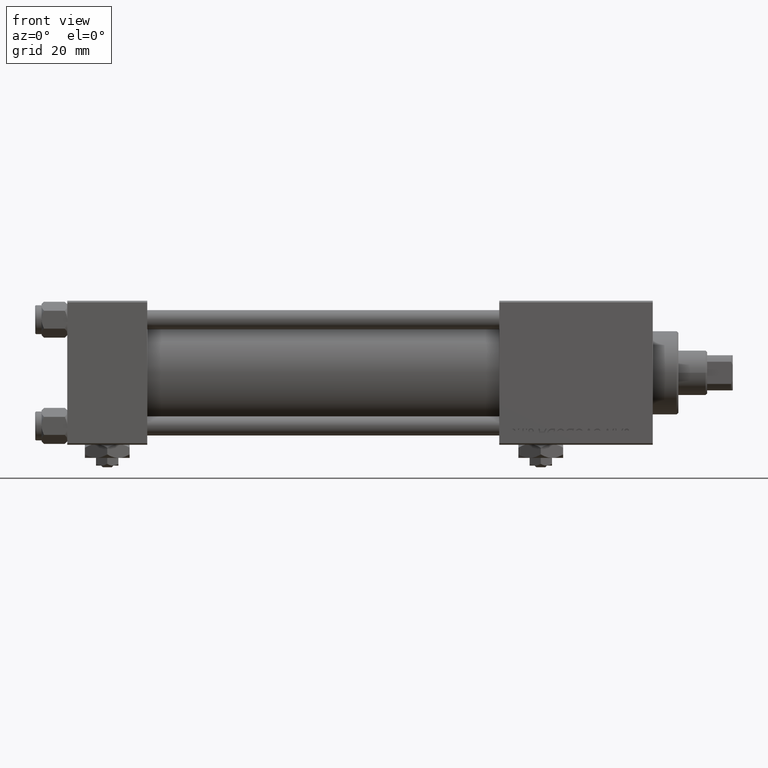
[diagram: clean part render]
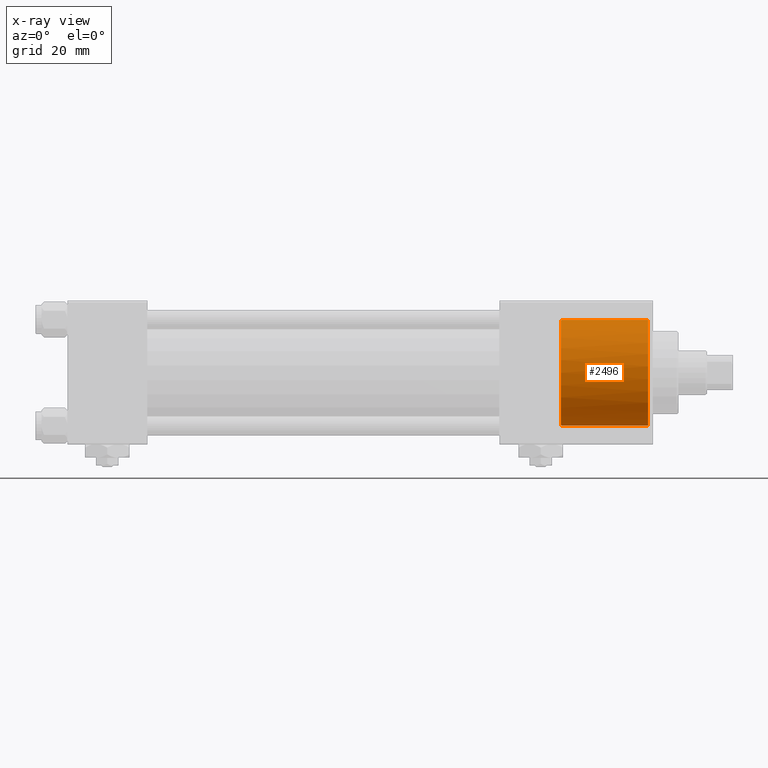
[diagram: x-ray — body ghosted, one internal face saturated and labeled with its STEP entity id]
A machine part, front view, then the same camera in x-ray: the body is ghosted and one INTERNAL B-rep face — a face not visible from any outside direction — is saturated and labeled: STEP entity #2496.
In plain terms, the highlighted cylindrical surface (partial cylindrical patch) has radius 16.5 mm, axis along (1, 0, 0).
Its self-contained STEP definition (entity closure, byte-faithful):
#72 = CARTESIAN_POINT ( 'NONE',  ( 154.5800000000000125, 2.020172432134641245E-15, 16.50000000000000000 ) ) ;
#199 = VERTEX_POINT ( 'NONE', #7208 ) ;
#568 = CIRCLE ( 'NONE', #18247, 16.50000000000000000 ) ;
#935 = CARTESIAN_POINT ( 'NONE',  ( 181.5000000000000000, 2.020667218593133100E-15, 16.50000000000000000 ) ) ;
#1030 = LINE ( 'NONE', #13138, #16371 ) ;
#1523 = EDGE_CURVE ( 'NONE', #2022, #23050, #1030, .T. ) ;
#2022 = VERTEX_POINT ( 'NONE', #72 ) ;
#2323 = CYLINDRICAL_SURFACE ( 'NONE', #30761, 16.50000000000000000 ) ;
#2496 = ADVANCED_FACE ( 'NONE', ( #26355 ), #2323, .F. ) ;
#2632 = B_SPLINE_CURVE_WITH_KNOTS ( 'NONE', 3,
 ( #27813, #7488, #10912, #23585, #4039, #27045 ),
 .UNSPECIFIED., .F., .F.,
 ( 4, 2, 4 ),
 ( 0.001922561461481232933, 0.002880296703329425154, 0.003838031945177617157 ),
 .UNSPECIFIED. ) ;
#2768 = CARTESIAN_POINT ( 'NONE',  ( 154.2999999999999829, -1.899052395275219629, -16.39035081991839249 ) ) ;
#4039 = CARTESIAN_POINT ( 'NONE',  ( 154.3928892406244984, -1.590897540048304304, -16.42605488887726040 ) ) ;
#4104 = DIRECTION ( 'NONE',  ( 1.000000000000000000, -0.000000000000000000, -0.000000000000000000 ) ) ;
#4422 = ORIENTED_EDGE ( 'NONE', *, *, #17588, .F. ) ;
#4443 = VERTEX_POINT ( 'NONE', #14669 ) ;
#4731 = ORIENTED_EDGE ( 'NONE', *, *, #22457, .T. ) ;
#6042 = DIRECTION ( 'NONE',  ( 1.000000000000000000, 0.000000000000000000, 0.000000000000000000 ) ) ;
#6359 = ORIENTED_EDGE ( 'NONE', *, *, #44464, .T. ) ;
#7208 = CARTESIAN_POINT ( 'NONE',  ( 154.2999999999999829, -1.899052395275226734, 16.39035081991839249 ) ) ;
#7488 = CARTESIAN_POINT ( 'NONE',  ( 154.5800000000000409, -0.3226077776616007586, -16.50000000000000000 ) ) ;
#7549 = CARTESIAN_POINT ( 'NONE',  ( 154.2999999999999829, 0.000000000000000000, -16.50000000000000000 ) ) ;
#8005 = CARTESIAN_POINT ( 'NONE',  ( 154.2999999999999829, 0.000000000000000000, 0.000000000000000000 ) ) ;
#10877 = ORIENTED_EDGE ( 'NONE', *, *, #26308, .F. ) ;
#10912 = CARTESIAN_POINT ( 'NONE',  ( 154.5560906815447026, -0.6453575044927177817, -16.49042383039745374 ) ) ;
#11008 = CARTESIAN_POINT ( 'NONE',  ( 154.5800000000000125, -4.947864844516897454E-19, -16.50000000000000000 ) ) ;
#13138 = CARTESIAN_POINT ( 'NONE',  ( 154.2999999999999829, 2.020667218593133100E-15, 16.50000000000000000 ) ) ;
#14669 = CARTESIAN_POINT ( 'NONE',  ( 181.5000000000000000, 0.000000000000000000, -16.50000000000000000 ) ) ;
#15453 = LINE ( 'NONE', #7549, #51915 ) ;
#15547 = VERTEX_POINT ( 'NONE', #2768 ) ;
#16371 = VECTOR ( 'NONE', #21588, 1000.000000000000000 ) ;
#17390 = DIRECTION ( 'NONE',  ( 0.000000000000000000, 0.000000000000000000, 1.000000000000000000 ) ) ;
#17588 = EDGE_CURVE ( 'NONE', #199, #15547, #568, .T. ) ;
#18247 = AXIS2_PLACEMENT_3D ( 'NONE', #8005, #43910, #24356 ) ;
#18667 = DIRECTION ( 'NONE',  ( 1.000000000000000000, -0.000000000000000000, -0.000000000000000000 ) ) ;
#21588 = DIRECTION ( 'NONE',  ( 1.000000000000000000, -0.000000000000000000, -0.000000000000000000 ) ) ;
#22457 = EDGE_CURVE ( 'NONE', #23050, #4443, #33497, .T. ) ;
#22518 = AXIS2_PLACEMENT_3D ( 'NONE', #42229, #6042, #17390 ) ;
#23050 = VERTEX_POINT ( 'NONE', #935 ) ;
#23149 = CARTESIAN_POINT ( 'NONE',  ( 154.5800000000000125, 2.020172432134641245E-15, 16.50000000000000000 ) ) ;
#23585 = CARTESIAN_POINT ( 'NONE',  ( 154.4625232366521459, -1.278516620530611103, -16.45344826064652466 ) ) ;
#24356 = DIRECTION ( 'NONE',  ( 0.000000000000000000, 0.000000000000000000, -1.000000000000000000 ) ) ;
#26226 = EDGE_LOOP ( 'NONE', ( #10877, #30357, #4731, #44671, #6359, #4422 ) ) ;
#26308 = EDGE_CURVE ( 'NONE', #2022, #199, #49970, .T. ) ;
#26355 = FACE_OUTER_BOUND ( 'NONE', #26226, .T. ) ;
#27045 = CARTESIAN_POINT ( 'NONE',  ( 154.2999999999999829, -1.899052395275219629, -16.39035081991839249 ) ) ;
#27380 = CARTESIAN_POINT ( 'NONE',  ( 154.2999999999999829, -1.899052395275226734, 16.39035081991839249 ) ) ;
#27813 = CARTESIAN_POINT ( 'NONE',  ( 154.5800000000000125, -4.947864844516897454E-19, -16.50000000000000000 ) ) ;
#30357 = ORIENTED_EDGE ( 'NONE', *, *, #1523, .T. ) ;
#30761 = AXIS2_PLACEMENT_3D ( 'NONE', #30838, #18667, #46933 ) ;
#30838 = CARTESIAN_POINT ( 'NONE',  ( 154.2999999999999829, 0.000000000000000000, 0.000000000000000000 ) ) ;
#31343 = CARTESIAN_POINT ( 'NONE',  ( 154.4625232366521175, -1.278516620530615322, 16.45344826064651755 ) ) ;
#33497 = CIRCLE ( 'NONE', #22518, 16.50000000000000000 ) ;
#35443 = VERTEX_POINT ( 'NONE', #11008 ) ;
#39521 = CARTESIAN_POINT ( 'NONE',  ( 154.5800000000000693, -0.3226077776616007031, 16.50000000000000000 ) ) ;
#42229 = CARTESIAN_POINT ( 'NONE',  ( 181.5000000000000000, 0.000000000000000000, 0.000000000000000000 ) ) ;
#43910 = DIRECTION ( 'NONE',  ( 1.000000000000000000, 0.000000000000000000, 0.000000000000000000 ) ) ;
#44153 = EDGE_CURVE ( 'NONE', #35443, #4443, #15453, .T. ) ;
#44464 = EDGE_CURVE ( 'NONE', #35443, #15547, #2632, .T. ) ;
#44671 = ORIENTED_EDGE ( 'NONE', *, *, #44153, .F. ) ;
#46933 = DIRECTION ( 'NONE',  ( 0.000000000000000000, 0.000000000000000000, -1.000000000000000000 ) ) ;
#47439 = CARTESIAN_POINT ( 'NONE',  ( 154.3928892406244984, -1.590897540048310077, 16.42605488887726040 ) ) ;
#49970 = B_SPLINE_CURVE_WITH_KNOTS ( 'NONE', 3,
 ( #23149, #39521, #51391, #31343, #47439, #27380 ),
 .UNSPECIFIED., .F., .F.,
 ( 4, 2, 4 ),
 ( 0.001922561461481224476, 0.002880296703329420817, 0.003838031945177617157 ),
 .UNSPECIFIED. ) ;
#51391 = CARTESIAN_POINT ( 'NONE',  ( 154.5560906815446742, -0.6453575044927195581, 16.49042383039745374 ) ) ;
#51915 = VECTOR ( 'NONE', #4104, 1000.000000000000000 ) ;